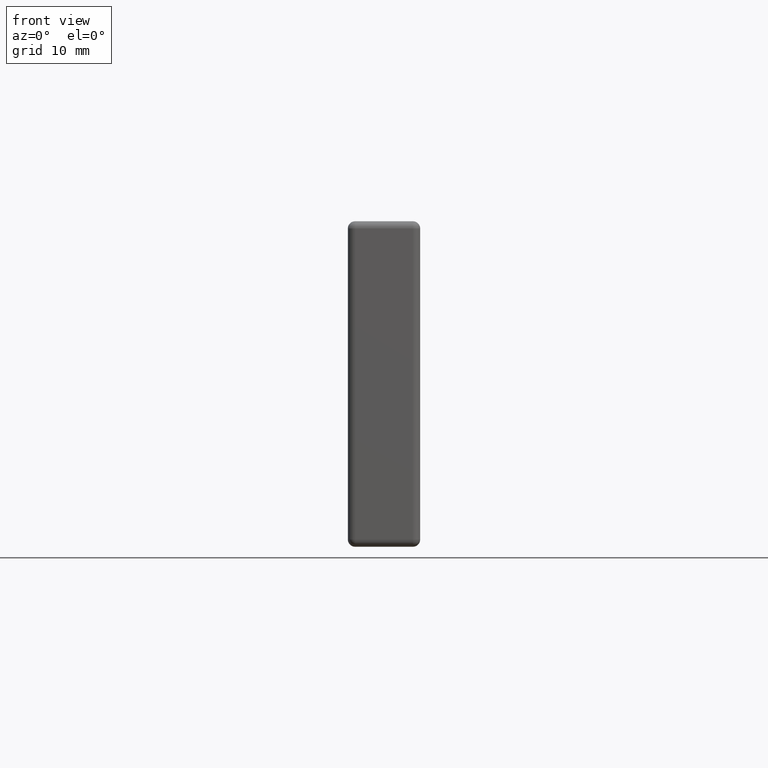
[diagram: clean part render]
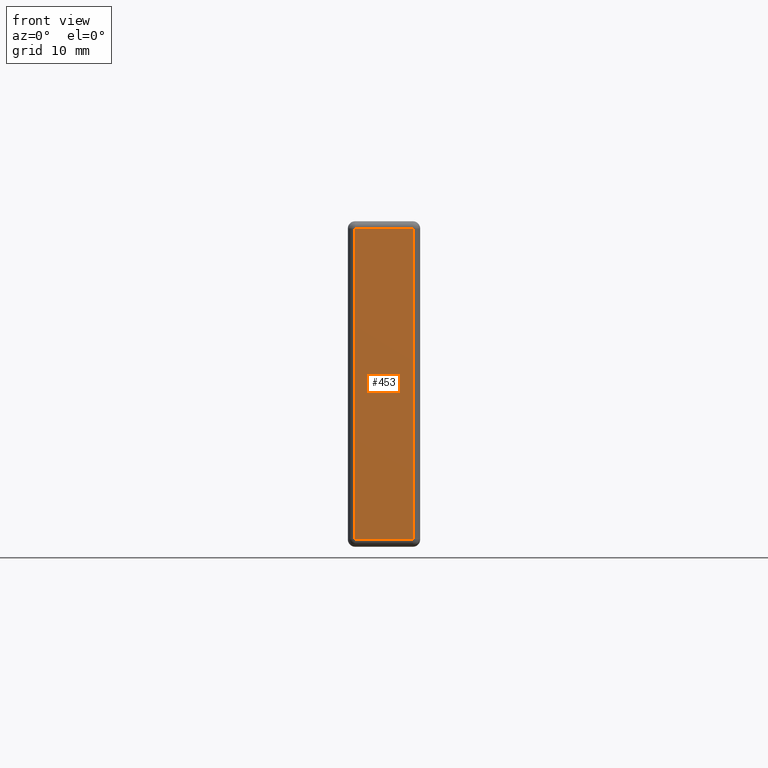
[diagram: same view with one face highlighted and labeled with its STEP entity id]
A machine part, front view. The second image highlights one B-rep face of the part: STEP entity #453.
In plain terms, the highlighted planar face has unit normal (0, -1, 0).
Its self-contained STEP definition (entity closure, byte-faithful):
#31=PLANE('',#515);
#39=LINE('',#740,#63);
#45=LINE('',#763,#69);
#49=LINE('',#769,#73);
#53=LINE('',#775,#77);
#63=VECTOR('',#589,8.);
#69=VECTOR('',#617,8.);
#73=VECTOR('',#625,43.);
#77=VECTOR('',#633,43.);
#124=FACE_OUTER_BOUND('',#160,.T.);
#160=EDGE_LOOP('',(#393,#394,#395,#396));
#217=VERTEX_POINT('',#701);
#228=VERTEX_POINT('',#728);
#231=VERTEX_POINT('',#735);
#235=VERTEX_POINT('',#755);
#269=EDGE_CURVE('',#217,#231,#39,.T.);
#281=EDGE_CURVE('',#235,#228,#45,.T.);
#285=EDGE_CURVE('',#231,#235,#49,.T.);
#289=EDGE_CURVE('',#228,#217,#53,.T.);
#393=ORIENTED_EDGE('',*,*,#281,.F.);
#394=ORIENTED_EDGE('',*,*,#285,.F.);
#395=ORIENTED_EDGE('',*,*,#269,.F.);
#396=ORIENTED_EDGE('',*,*,#289,.F.);
#453=ADVANCED_FACE('',(#124),#31,.T.);
#515=AXIS2_PLACEMENT_3D('',#794,#658,#659);
#589=DIRECTION('',(-1.,0.,0.));
#617=DIRECTION('',(1.,0.,0.));
#625=DIRECTION('',(0.,0.,1.));
#633=DIRECTION('',(0.,0.,-1.));
#658=DIRECTION('center_axis',(0.,-1.,0.));
#659=DIRECTION('ref_axis',(0.,0.,-1.));
#701=CARTESIAN_POINT('',(4.,-45.,-21.5));
#728=CARTESIAN_POINT('',(4.,-45.,21.5));
#735=CARTESIAN_POINT('',(-4.,-45.,-21.5));
#740=CARTESIAN_POINT('',(0.,-45.,-21.5));
#755=CARTESIAN_POINT('',(-4.,-45.,21.5));
#763=CARTESIAN_POINT('',(0.,-45.,21.5));
#769=CARTESIAN_POINT('',(-4.,-45.,11.25));
#775=CARTESIAN_POINT('',(4.,-45.,11.25));
#794=CARTESIAN_POINT('Origin',(0.,-45.,22.5));